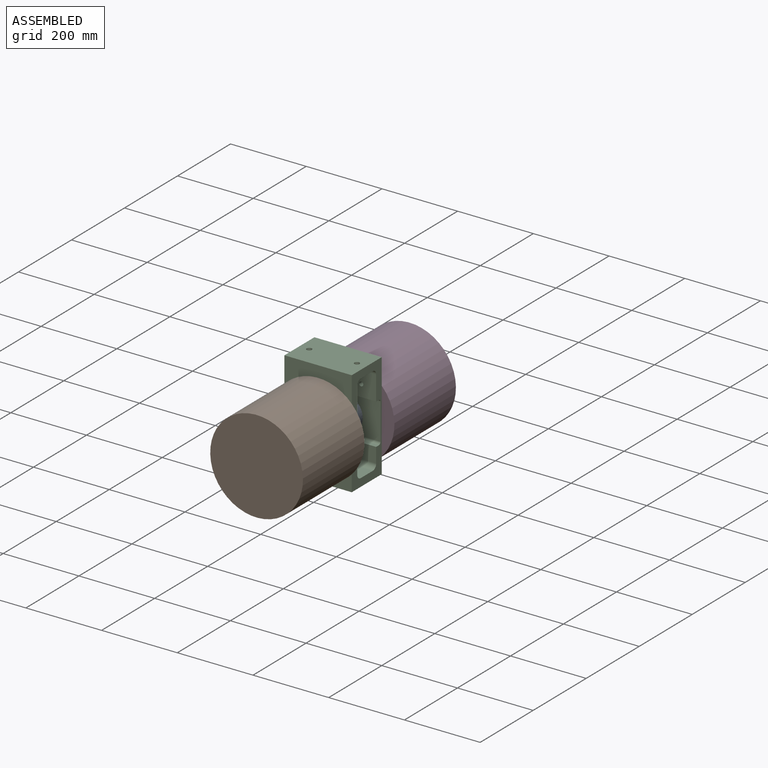
[diagram: assembled view]
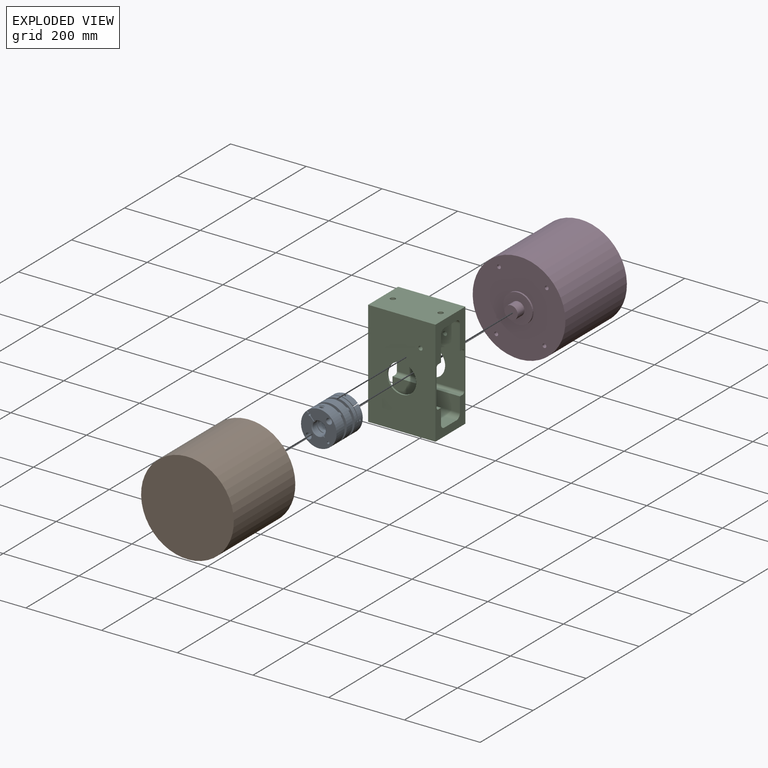
[diagram: exploded view]
GUIDED TOUR — MATED ASSEMBLY (Onshape document abf98404d315560c5acd02f6, AutoMate assembly abf98404d315560c5acd02f6_081950625e6a6983c9163e10_e95b7b0b7354ffd25ec676a7_default)

This assembly has 4 components, labeled P0..P3 below (a component is one placed occurrence of a part; the same part can appear more than once), held together by 4 mates. A mate is a constraint between two components; its type names the relative motion it leaves free:
  REVOLUTE — leaves rotation about the listed axis free (a hinge),
  SLIDER — leaves translation along the listed axis free.
Axis/direction vectors are unit vectors and 'through' points are millimeter coordinates, both in the assembly's world frame.

MATES
  1. SLIDER "Slider 2": P0 <-> P1, axis (0.000, 1.000, 0.000) through (-38.26, 90.10, -4.93) mm
  2. REVOLUTE "Revolute 2": P2 <-> P3, axis (0.000, 1.000, 0.000) through (-38.26, 184.48, -4.93) mm
  3. SLIDER "Slider 1": P0 <-> P3, axis (0.000, 1.000, 0.000) through (-38.26, 156.78, -4.93) mm
  4. REVOLUTE "Revolute 1": P1 <-> P2, axis (0.000, 1.000, 0.000) through (-38.26, 71.45, -4.93) mm

ASSEMBLY ORDER
  1. P0 — the base component [order verified]
  2. P2 [order verified]
  3. P1 [order verified]
  4. P3 [order verified]
Order-tag legend:
  [order verified] — this step's position reverses a verified removal order: the component was checked to insert without passing through the ones already placed.

Of the 4 components, 3 carry the full construction recipe — the FeatureScript program that regenerates the part's solid from scratch; the rest are supplied as boundary geometry only.
Each toured component is shown spotlighted twice — in the assembled view, then in the exploded view, where a leader line traces a displaced component back to its assembled socket (saturated green if recipe-attached, orange if geometry-only; every other component desaturated gray) — followed by its recipe or geometry summary and the mates that hold it.
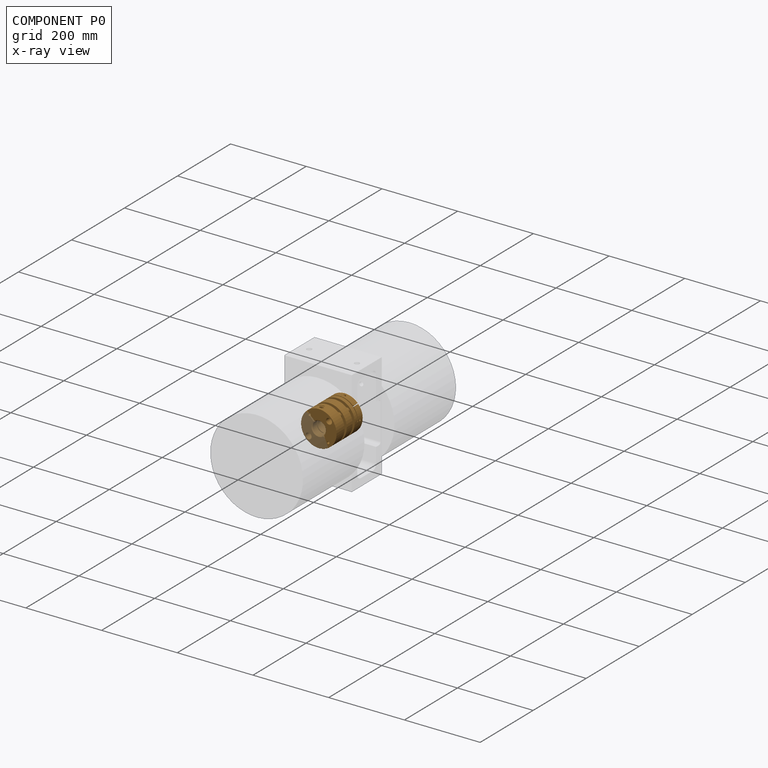
[diagram: component P0 — x-ray view]
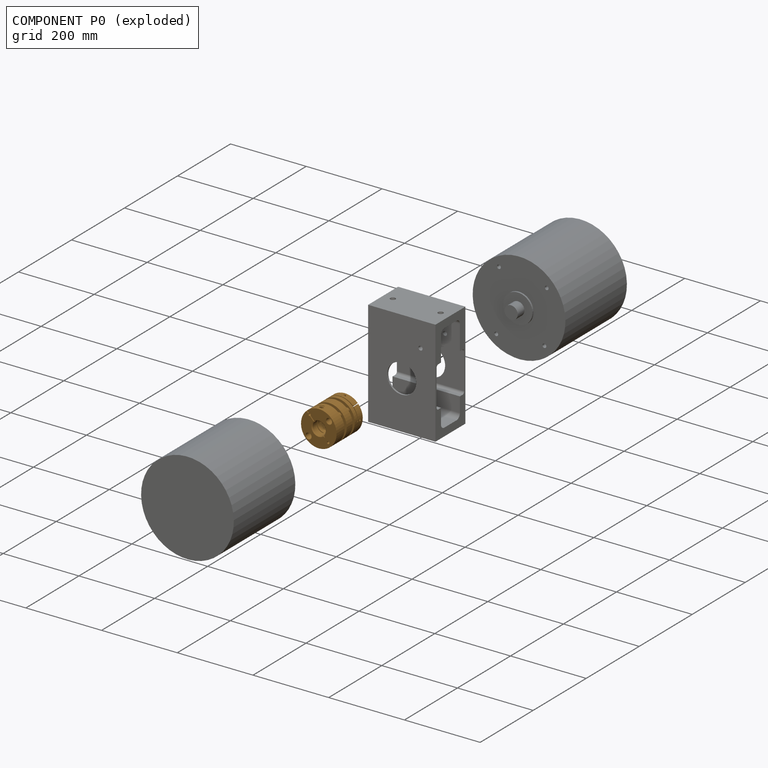
[diagram: component P0 — exploded]
COMPONENT P0 — geometry summary (no construction recipe available for this part):
  bounding box: 98.6 x 94.0 x 94.0 mm
  B-rep topology: 1 solid, 228 faces, 1196 edges
  volume: 434798 mm^3 (50% of its bounding box)
Held by: SLIDER mate "Slider 2" to P1; SLIDER mate "Slider 1" to P3.
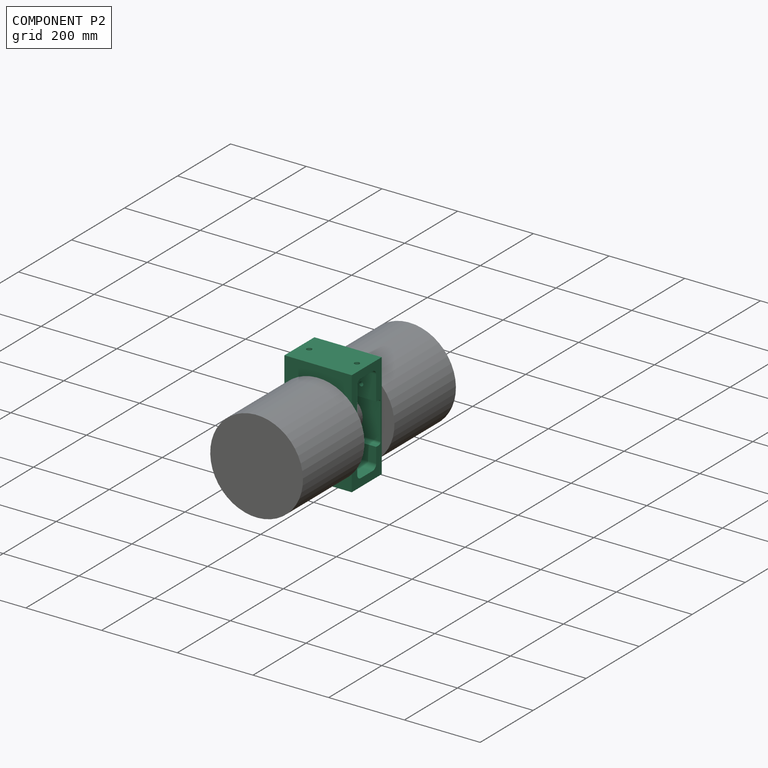
[diagram: component P2 — assembled]
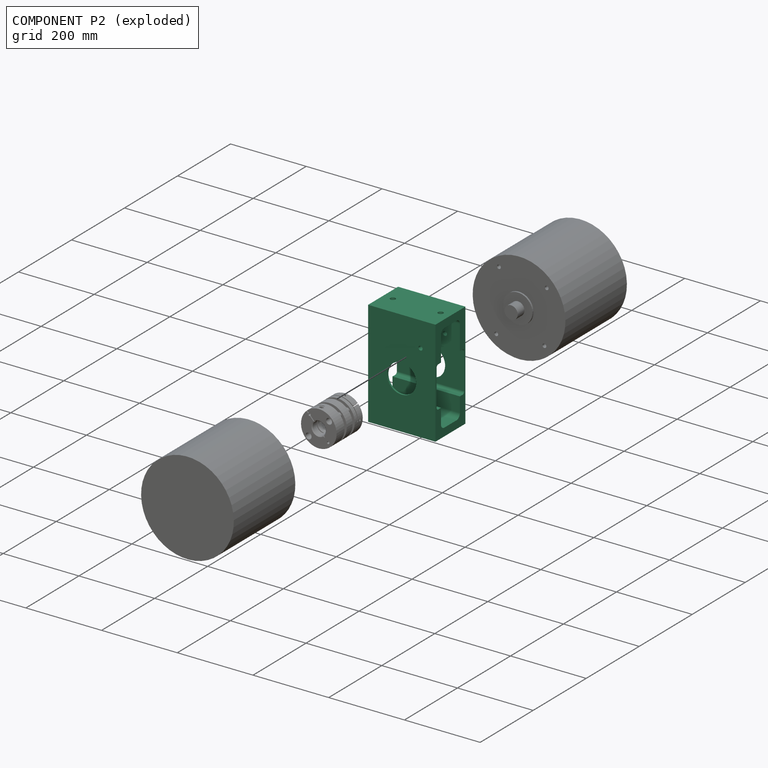
[diagram: component P2 — exploded]
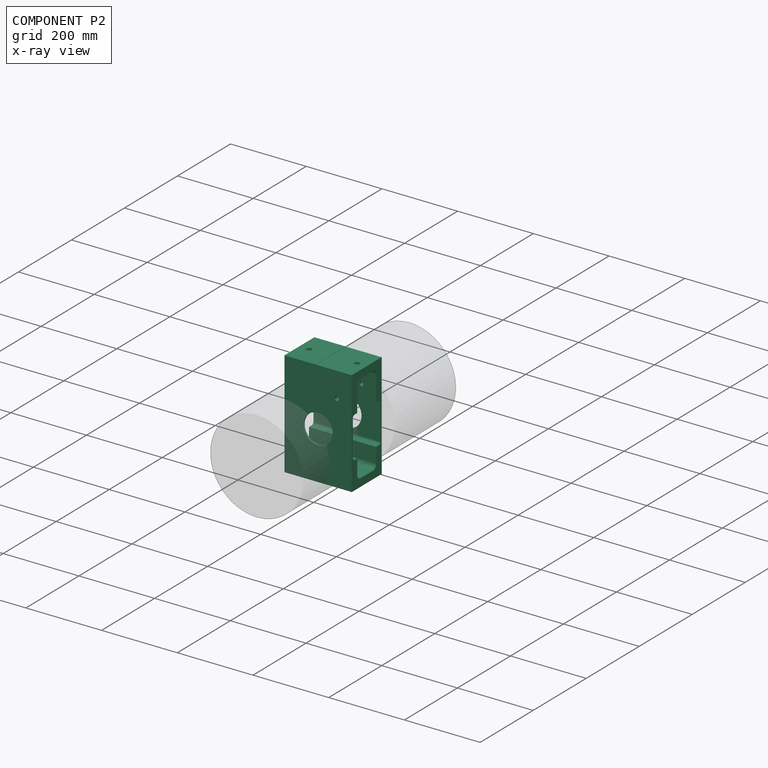
[diagram: component P2 — x-ray view]
COMPONENT P2 — recipe-attached (CADFS 00810995, mesh-verified: the recipe's output STEP matches this component's geometry to below the mesh-comparison resolution (tessellation chordal tolerance ~0.525 mm)).
Held by: REVOLUTE mate "Revolute 2" to P3; REVOLUTE mate "Revolute 1" to P1.
Construction recipe (FeatureScript — the CAD program that rebuilds this solid; sketch coordinates are in the units given by the * unit suffixes, e.g. mm):

FeatureScript 2045;
import(path : "onshape/std/geometry.fs", version : "2045.0");
import(path : "onshape/std/common.fs", version : "2045.0");
const mm = millimeter;
const VERTEX = EntityType.VERTEX;
const EDGE = EntityType.EDGE;
const FACE = EntityType.FACE;
const BODY = EntityType.BODY;
function v(x, y){return vector(x, y);}
function OD(order){return orderDisambiguation(order);}
function OSD(set){return originalSetDisambiguation(set);}
function TD(topology){return topologyDisambiguation(topology);}
function TDD(query){return trueDependencyDisambiguation(query);}
function sQuery(a, b, c) {return sketchEntityQuery(a, b, c);}

annotation { "Feature Type Name" : "Feature", "Feature Type Description" : "" }
export const myFeature = defineFeature(function(context is Context, id is Id, definition is map)
    precondition{}
    {
        {
            var Q0;
            Q0=qCreatedBy(makeId("Front.planeOp"),FACE);
            var sketch = newSketch(context, id + "F0", { "sketchPlane" : qUnion([Q0])});
            skCircle(sketch, "E0", {"center": v(0, 0) * mm, "radius": 38.5 * mm});
            skLineSegment(sketch, "E1.bottom", {"start": v(-88.9, 127) * mm, "end": v(88.9, 127) * mm});
            skLineSegment(sketch, "E1.top", {"start": v(-88.9, -152.4) * mm, "end": v(88.9, -152.4) * mm});
            skLineSegment(sketch, "E1.left", {"start": v(-88.9, 127) * mm, "end": v(-88.9, -152.4) * mm});
            skLineSegment(sketch, "E1.right", {"start": v(88.9, 127) * mm, "end": v(88.9, -152.4) * mm});
            skLineSegment(sketch, "E2", {"start": v(0, 0) * mm, "end": v(0, 127) * mm, "construction": true});
            skSolve(sketch);
        }
        {
            var Q0;
            Q0 = qSketchRegion(id + "F0", true);
            extrude(context, id + "F1", {"entities" : qUnion([Q0]), "depth" : 113.03 * mm, "offsetDistance" : 25.4 * mm, "symmetric" : true});
        }
        {
            var Q0;
            Q0=makeQuery(id+"F1.opExtrude","SWEPT_FACE",FACE,{"disambiguationData":[OSD([sQuery(id+"F0.wireOp",EDGE,"E1.right")])]});
            var sketch = newSketch(context, id + "F2", { "sketchPlane" : qUnion([Q0])});
            skLineSegment(sketch, "E3.0", {"start": v(35.7, -118.88) * mm, "end": v(35.7, 93.48) * mm});
            skLineSegment(sketch, "E3.1", {"start": v(-23, -131.58) * mm, "end": v(23, -131.58) * mm});
            skLineSegment(sketch, "E3.2", {"start": v(-35.7, 93.48) * mm, "end": v(-35.7, -118.88) * mm});
            skLineSegment(sketch, "E3.3", {"start": v(23, 106.18) * mm, "end": v(-23, 106.18) * mm});
            skPoint(sketch, "E4.visualSharp", {"position": v(-35.7, 106.18) * mm});
            skArc(sketch, "E4.filletArc", {"start": v(-23, 106.18) * mm, "mid": v(-31.97, 102.46) * mm, "end": v(-35.7, 93.48) * mm});
            skPoint(sketch, "E5.visualSharp", {"position": v(35.7, 106.18) * mm});
            skArc(sketch, "E5.filletArc", {"start": v(35.7, 93.48) * mm, "mid": v(31.97, 102.46) * mm, "end": v(23, 106.18) * mm});
            skPoint(sketch, "E6.visualSharp", {"position": v(35.7, -131.58) * mm});
            skArc(sketch, "E6.filletArc", {"start": v(23, -131.58) * mm, "mid": v(31.97, -127.86) * mm, "end": v(35.7, -118.88) * mm});
            skPoint(sketch, "E7.visualSharp", {"position": v(-35.7, -131.58) * mm});
            skArc(sketch, "E7.filletArc", {"start": v(-35.7, -118.88) * mm, "mid": v(-31.97, -127.86) * mm, "end": v(-23, -131.58) * mm});
            skSolve(sketch);
        }
        {
            var Q0;
            Q0=makeQuery(id+"F2.imprint","IMPRINT",FACE,{"disambiguationData":[TD([[makeQuery(id+"F2.imprint","IMPRINT",EDGE,{"derivedFrom":sQuery(id+"F2.wireOp",EDGE,"E3.0")}),1.0]])]});
            extrude(context, id + "F3", {"entities" : qUnion([Q0]), "operationType" : NewBodyOperationType.REMOVE, "endBound" : BoundingType.THROUGH_ALL, "oppositeDirection" : true, "depth" : 25.4 * mm, "offsetDistance" : 25.4 * mm});
        }
        {
            var Q0;
            Q0=makeQuery(id+"F1.opExtrude","SWEPT_FACE",FACE,{"disambiguationData":[OSD([sQuery(id+"F0.wireOp",EDGE,"E1.left")])]});
            var sketch = newSketch(context, id + "F4", { "sketchPlane" : qUnion([Q0])});
            skLineSegment(sketch, "E8.bottom", {"start": v(-45.72, 53.97) * mm, "end": v(45.72, 53.97) * mm});
            skLineSegment(sketch, "E8.top", {"start": v(-45.72, -53.98) * mm, "end": v(45.72, -53.98) * mm});
            skLineSegment(sketch, "E8.left", {"start": v(-52.07, 47.62) * mm, "end": v(-52.07, -47.63) * mm});
            skLineSegment(sketch, "E8.right", {"start": v(52.07, 47.62) * mm, "end": v(52.07, -47.62) * mm});
            skLineSegment(sketch, "E9", {"start": v(-52.07, 53.98) * mm, "end": v(52.07, -53.98) * mm, "construction": true});
            skPoint(sketch, "E10.visualSharp", {"position": v(-52.07, 53.97) * mm});
            skArc(sketch, "E10.filletArc", {"start": v(-45.72, 53.97) * mm, "mid": v(-50.21, 52.12) * mm, "end": v(-52.07, 47.62) * mm});
            skPoint(sketch, "E11.visualSharp", {"position": v(52.07, 53.97) * mm});
            skArc(sketch, "E11.filletArc", {"start": v(52.07, 47.62) * mm, "mid": v(50.21, 52.12) * mm, "end": v(45.72, 53.97) * mm});
            skPoint(sketch, "E12.visualSharp", {"position": v(52.07, -53.98) * mm});
            skArc(sketch, "E12.filletArc", {"start": v(45.72, -53.98) * mm, "mid": v(50.21, -52.12) * mm, "end": v(52.07, -47.62) * mm});
            skPoint(sketch, "E13.visualSharp", {"position": v(-52.07, -53.98) * mm});
            skArc(sketch, "E13.filletArc", {"start": v(-52.07, -47.63) * mm, "mid": v(-50.21, -52.12) * mm, "end": v(-45.72, -53.98) * mm});
            skSolve(sketch);
        }
        {
            var Q0;
            Q0 = qSketchRegion(id + "F4", true);
            extrude(context, id + "F5", {"entities" : qUnion([Q0]), "operationType" : NewBodyOperationType.REMOVE, "endBound" : BoundingType.THROUGH_ALL, "oppositeDirection" : true, "depth" : 25.4 * mm, "offsetDistance" : 25.4 * mm});
        }
        {
            var Q0;
            Q0=makeQuery(id+"F3.boolean.opBoolean","COPY",FACE,{"derivedFrom":makeQuery(id+"F3.opExtrude","SWEPT_FACE",FACE,{"disambiguationData":[OSD([sQuery(id+"F2.wireOp",EDGE,"E3.1")])]})});
            var sketch = newSketch(context, id + "F6", { "sketchPlane" : qUnion([Q0])});
            skLineSegment(sketch, "E14", {"start": v(88.9, 0) * mm, "end": v(-88.9, 0) * mm, "construction": true});
            skCircle(sketch, "E15", {"center": v(63.1, 0) * mm, "radius": 6.75 * mm});
            skCircle(sketch, "E16", {"center": v(-63.1, 0) * mm, "radius": 6.75 * mm});
            skCircle(sketch, "E17", {"center": v(0, 0) * mm, "radius": 63.1 * mm, "construction": true});
            skSolve(sketch);
        }
        {
            var Q0;
            Q0 = qSketchRegion(id + "F6", true);
            extrude(context, id + "F7", {"entities" : qUnion([Q0]), "operationType" : NewBodyOperationType.REMOVE, "endBound" : BoundingType.THROUGH_ALL, "oppositeDirection" : true, "depth" : 25.4 * mm, "offsetDistance" : 25.4 * mm});
        }
        {
            var Q0;
            Q0=makeQuery(id+"F1.opExtrude","CAP_FACE",FACE,{"disambiguationData":[OSD([sQuery(id+"F0.wireOp",EDGE,"E0"),sQuery(id+"F0.wireOp",EDGE,"E1.bottom"),sQuery(id+"F0.wireOp",EDGE,"E1.top"),sQuery(id+"F0.wireOp",EDGE,"E1.left"),sQuery(id+"F0.wireOp",EDGE,"E1.right")])],"isStart":false});
            var sketch = newSketch(context, id + "F8", { "sketchPlane" : qUnion([Q0])});
            skCircle(sketch, "E18", {"center": v(0, 0) * mm, "radius": 99 * mm, "construction": true});
            skCircle(sketch, "E19", {"center": v(49.5, -85.74) * mm, "radius": 5.5 * mm});
            skLineSegment(sketch, "E20", {"start": v(0, 0) * mm, "end": v(49.5, -85.74) * mm, "construction": true});
            skLineSegment(sketch, "E21", {"start": v(0, 0) * mm, "end": v(0, -99) * mm});
            skSolve(sketch);
        }
        {
            var Q0;
            Q0 = qSketchRegion(id + "F8", true);
            extrude(context, id + "F9", {"entities" : qUnion([Q0]), "operationType" : NewBodyOperationType.REMOVE, "endBound" : BoundingType.THROUGH_ALL, "oppositeDirection" : true, "depth" : 25.4 * mm, "offsetDistance" : 25.4 * mm});
        }
    });
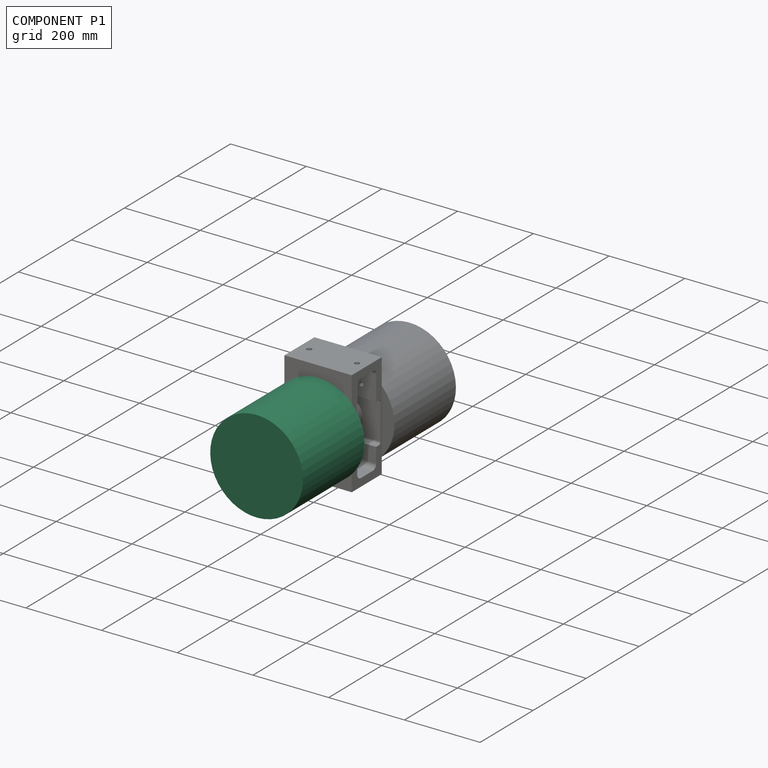
[diagram: component P1 — assembled]
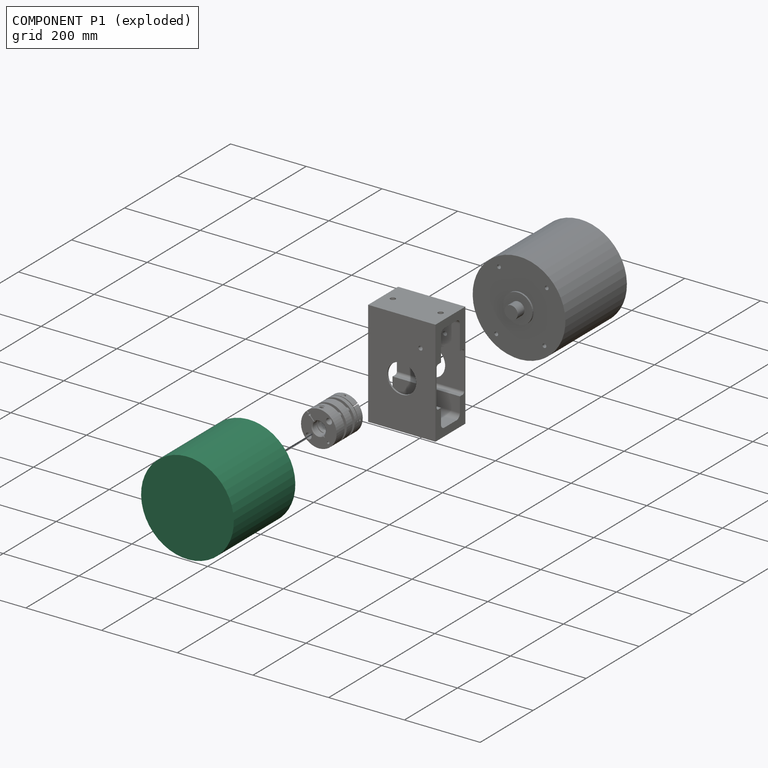
[diagram: component P1 — exploded]
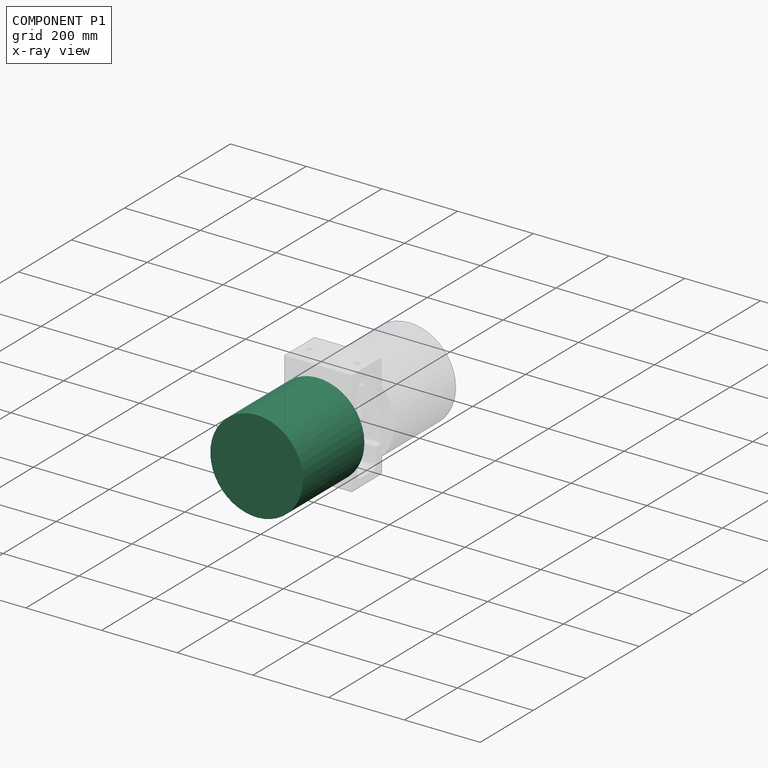
[diagram: component P1 — x-ray view]
COMPONENT P1 — recipe-attached (CADFS 00810994, mesh-verified: the recipe's output STEP matches this component's geometry to below the mesh-comparison resolution (tessellation chordal tolerance ~0.652 mm)).
Held by: SLIDER mate "Slider 2" to P0; REVOLUTE mate "Revolute 1" to P2.
Construction recipe (FeatureScript — the CAD program that rebuilds this solid; sketch coordinates are in the units given by the * unit suffixes, e.g. mm):

FeatureScript 2045;
import(path : "onshape/std/geometry.fs", version : "2045.0");
import(path : "onshape/std/common.fs", version : "2045.0");
const mm = millimeter;
const VERTEX = EntityType.VERTEX;
const EDGE = EntityType.EDGE;
const FACE = EntityType.FACE;
const BODY = EntityType.BODY;
function v(x, y){return vector(x, y);}
function OD(order){return orderDisambiguation(order);}
function OSD(set){return originalSetDisambiguation(set);}
function TD(topology){return topologyDisambiguation(topology);}
function TDD(query){return trueDependencyDisambiguation(query);}
function sQuery(a, b, c) {return sketchEntityQuery(a, b, c);}

annotation { "Feature Type Name" : "Feature", "Feature Type Description" : "" }
export const myFeature = defineFeature(function(context is Context, id is Id, definition is map)
    precondition{}
    {
        {
            var Q0;
            Q0=qCreatedBy(makeId("Front.planeOp"),FACE);
            var sketch = newSketch(context, id + "F0", { "sketchPlane" : qUnion([Q0])});
            skCircle(sketch, "E0", {"center": v(0, 0) * mm, "radius": 17.5 * mm});
            skSolve(sketch);
        }
        {
            var Q0;
            Q0=makeQuery(id+"F0.imprint","IMPRINT",FACE,{"disambiguationData":[TD([[makeQuery(id+"F0.imprint","IMPRINT",EDGE,{"derivedFrom":sQuery(id+"F0.wireOp",EDGE,"E0")}),1.0]])]});
            extrude(context, id + "F1", {"entities" : qUnion([Q0]), "oppositeDirection" : true, "depth" : 30 * mm, "offsetDistance" : 25 * mm});
        }
        {
            var Q0;
            Q0=qCreatedBy(makeId("Front.planeOp"),FACE);
            var sketch = newSketch(context, id + "F2", { "sketchPlane" : qUnion([Q0])});
            skCircle(sketch, "E1", {"center": v(0, 0) * mm, "radius": 38.5 * mm});
            skSolve(sketch);
        }
        {
            var Q0;
            Q0 = qSketchRegion(id + "F2", true);
            extrude(context, id + "F3", {"entities" : qUnion([Q0]), "operationType" : NewBodyOperationType.ADD, "oppositeDirection" : true, "depth" : 4.5 * mm, "offsetDistance" : 25 * mm});
        }
        {
            var Q0;
            Q0=qCreatedBy(makeId("Front.planeOp"),FACE);
            var sketch = newSketch(context, id + "F4", { "sketchPlane" : qUnion([Q0])});
            skCircle(sketch, "E2", {"center": v(0, 0) * mm, "radius": 122.5 * mm});
            skSolve(sketch);
        }
        {
            var Q0;
            Q0 = qSketchRegion(id + "F4", true);
            extrude(context, id + "F5", {"entities" : qUnion([Q0]), "operationType" : NewBodyOperationType.ADD, "depth" : 232 * mm, "offsetDistance" : 25 * mm});
        }
        {
            var Q0;
            Q0=makeQuery(id+"F5.opExtrude","CAP_FACE",FACE,{"disambiguationData":[OSD([sQuery(id+"F4.wireOp",EDGE,"E2")])],"isStart":true});
            var sketch = newSketch(context, id + "F6", { "sketchPlane" : qUnion([Q0])});
            skCircle(sketch, "E3", {"center": v(0, 0) * mm, "radius": 99 * mm, "construction": true});
            skCircle(sketch, "E4", {"center": v(-99, 0) * mm, "radius": 5 * mm});
            skCircle(sketch, "E5", {"center": v(0, 99) * mm, "radius": 5 * mm});
            skCircle(sketch, "E6", {"center": v(97.5, 17.2) * mm, "radius": 5 * mm});
            skCircle(sketch, "E7", {"center": v(-17.2, -97.5) * mm, "radius": 5 * mm});
            skLineSegment(sketch, "E8", {"start": v(0, 0) * mm, "end": v(-99, 0) * mm, "construction": true});
            skLineSegment(sketch, "E9", {"start": v(0, 0) * mm, "end": v(0, 99) * mm, "construction": true});
            skLineSegment(sketch, "E10", {"start": v(0, 0) * mm, "end": v(97.5, 17.2) * mm, "construction": true});
            skLineSegment(sketch, "E11", {"start": v(0, 0) * mm, "end": v(-17.2, -97.5) * mm, "construction": true});
            skSolve(sketch);
        }
        {
            var Q0;
            Q0 = qSketchRegion(id + "F6", true);
            extrude(context, id + "F7", {"entities" : qUnion([Q0]), "operationType" : NewBodyOperationType.REMOVE, "oppositeDirection" : true, "depth" : 25 * mm, "offsetDistance" : 25.4 * mm});
        }
    });
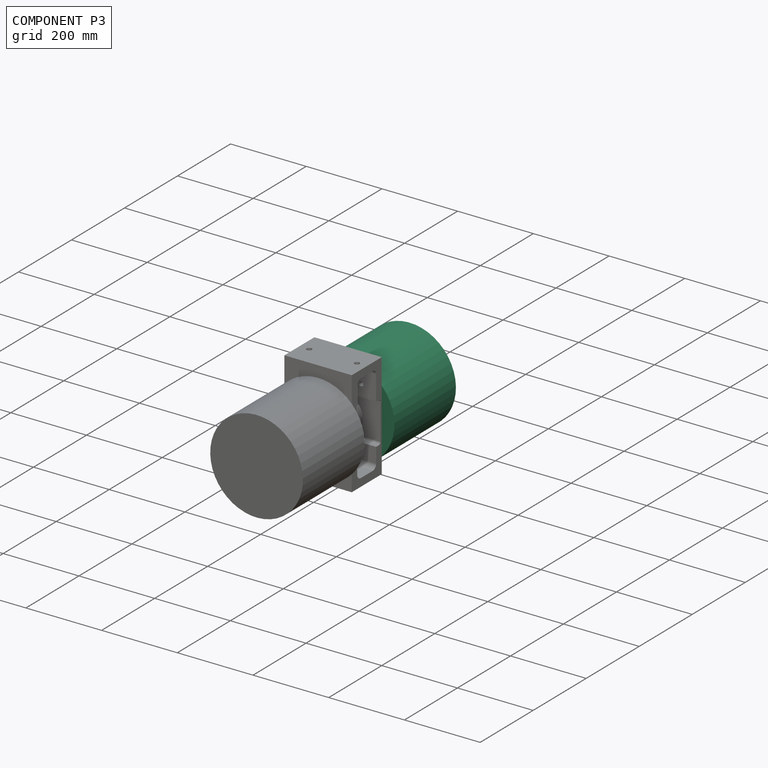
[diagram: component P3 — assembled]
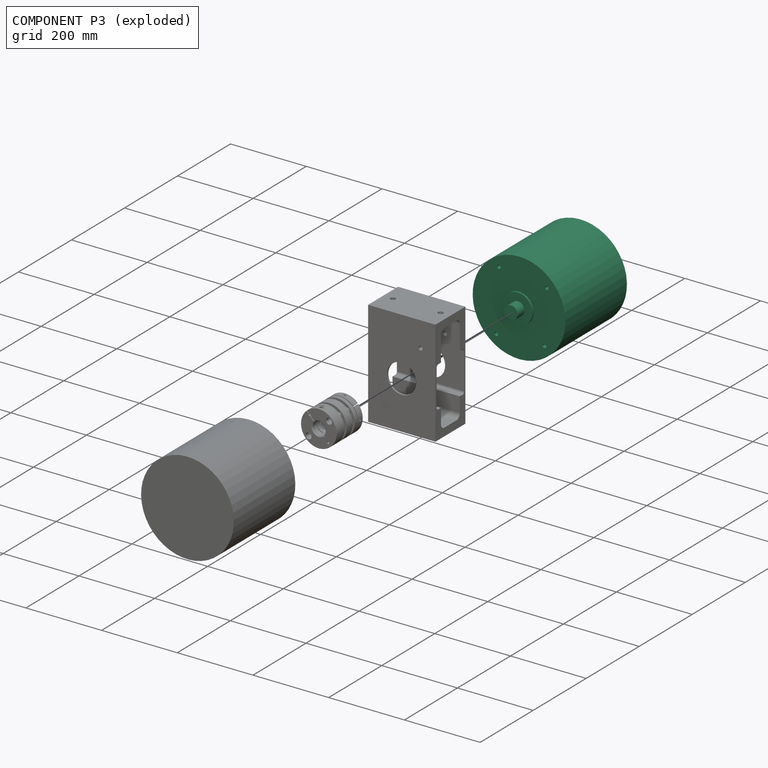
[diagram: component P3 — exploded]
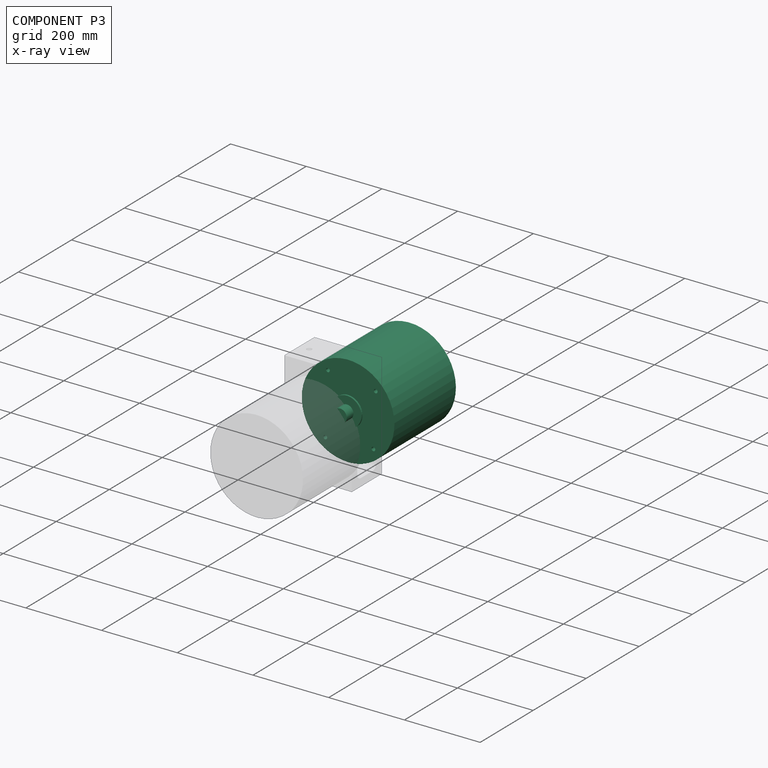
[diagram: component P3 — x-ray view]
COMPONENT P3 — same part as P1 (CADFS 00810994); its construction recipe is shown at P1.
Held by: REVOLUTE mate "Revolute 2" to P2; SLIDER mate "Slider 1" to P0.
PROVENANCE & LICENSES
Assembly (occurrences, transforms, mates, per-part STEP geometry): AutoMate dataset, Zenodo record 7776208, CC0.
Construction recipes: CADFS (HuggingFace VladPyatov/CADFS, CC-BY-4.0, layered over the ABC dataset), FeatureScript reconstruction programs keyed by ABC model id.
Join: ABC meta listings map ABC model id -> Onshape documentId; within a shared document, parts are matched by geometric signature (bounding-box dims + volume at 0.1% relative tolerance, exact B-rep face/solid counts).
Verification: 3 of this assembly's 4 components carry a recipe attachment, and every attachment is mesh-verified: the CADFS STEP and the AutoMate member STEP were compared as meshes in their shared local frame (symmetric sampled-point-to-mesh distance); worst across the 3 attachments: below the mesh-comparison resolution (tessellation chordal tolerance ~0.652 mm) on a 434 mm part.
Renders: orthographic iso camera (az 35 / el 25); the floor grid conveys scale (grid pitch printed in each image; no ruler). In the exploded view each component is displaced by its stored offset vector: the offsets alone carry the explosion direction (mate normal/axis signs are not orientation cues and do not encode it), and separation distances are assigned per mate-chain, not proportionally to assembly-order depth.
